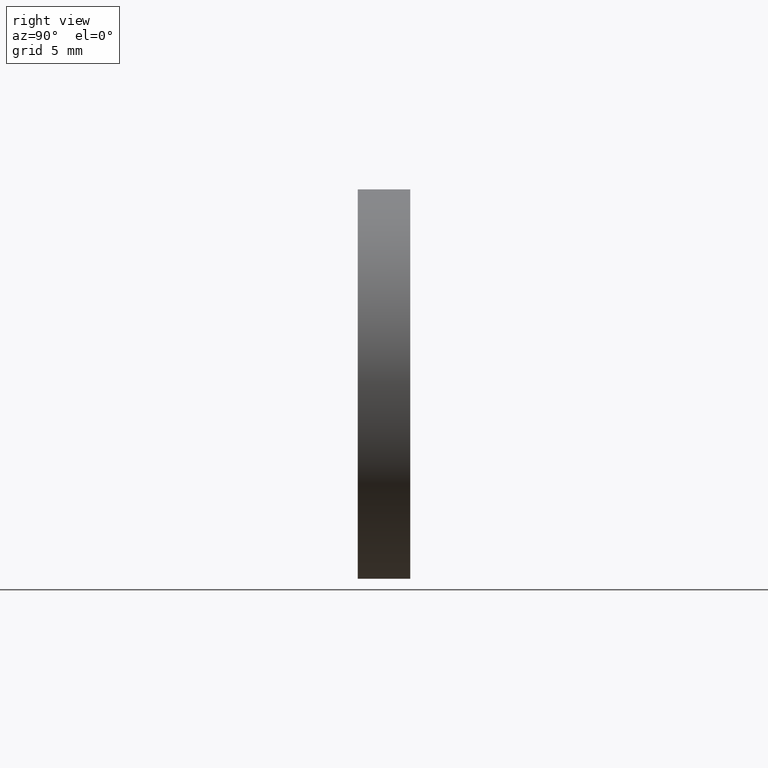
[diagram: clean part render]
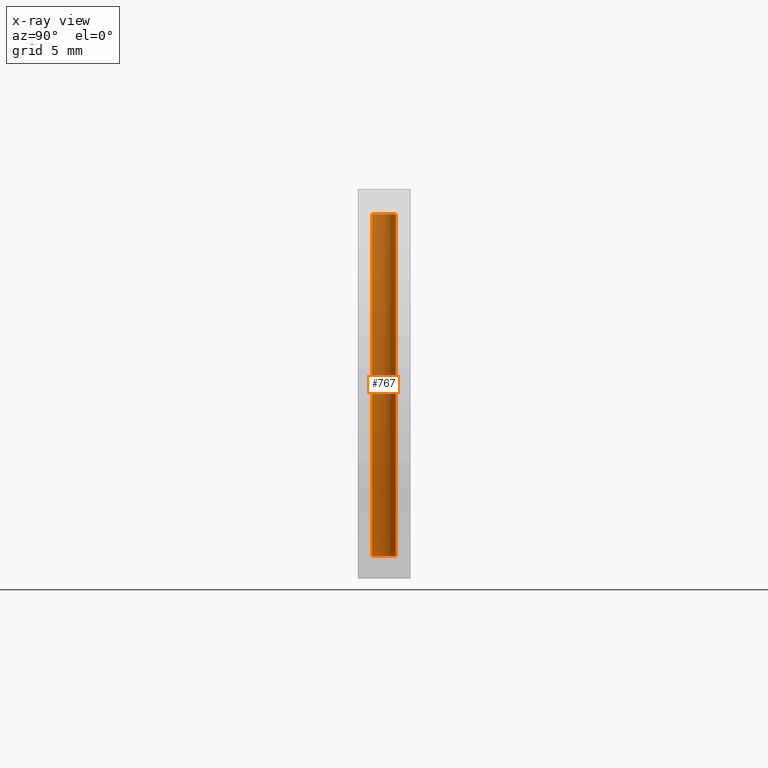
[diagram: x-ray — body ghosted, one internal face saturated and labeled with its STEP entity id]
A machine part, right view, then the same camera in x-ray: the body is ghosted and one INTERNAL B-rep face — a face not visible from any outside direction — is saturated and labeled: STEP entity #767.
In plain terms, the highlighted cylindrical surface (bore or boss wall) has radius 0.9 mm, axis along (0, 0, 1).
Its self-contained STEP definition (entity closure, byte-faithful):
#68=CYLINDRICAL_SURFACE('',#867,0.9);
#108=FACE_BOUND('',#293,.T.);
#153=CIRCLE('',#866,0.9);
#154=CIRCLE('',#868,0.9);
#206=FACE_OUTER_BOUND('',#292,.T.);
#292=EDGE_LOOP('',(#703));
#293=EDGE_LOOP('',(#704));
#437=VERTEX_POINT('',#1420);
#438=VERTEX_POINT('',#1423);
#526=EDGE_CURVE('',#437,#437,#153,.T.);
#527=EDGE_CURVE('',#438,#438,#154,.T.);
#703=ORIENTED_EDGE('',*,*,#526,.F.);
#704=ORIENTED_EDGE('',*,*,#527,.F.);
#767=ADVANCED_FACE('',(#206,#108),#68,.T.);
#866=AXIS2_PLACEMENT_3D('',#1421,#1099,#1100);
#867=AXIS2_PLACEMENT_3D('',#1422,#1101,#1102);
#868=AXIS2_PLACEMENT_3D('',#1424,#1103,#1104);
#1099=DIRECTION('center_axis',(0.,0.,-1.));
#1100=DIRECTION('ref_axis',(1.,0.,0.));
#1101=DIRECTION('center_axis',(0.,0.,1.));
#1102=DIRECTION('ref_axis',(1.,0.,0.));
#1103=DIRECTION('center_axis',(0.,0.,1.));
#1104=DIRECTION('ref_axis',(1.,0.,0.));
#1420=CARTESIAN_POINT('',(-0.9,-1.10218211923262E-16,-13.));
#1421=CARTESIAN_POINT('Origin',(0.,0.,-13.));
#1422=CARTESIAN_POINT('Origin',(0.,0.,0.));
#1423=CARTESIAN_POINT('',(-0.9,-1.10218211923262E-16,13.));
#1424=CARTESIAN_POINT('Origin',(0.,0.,13.));